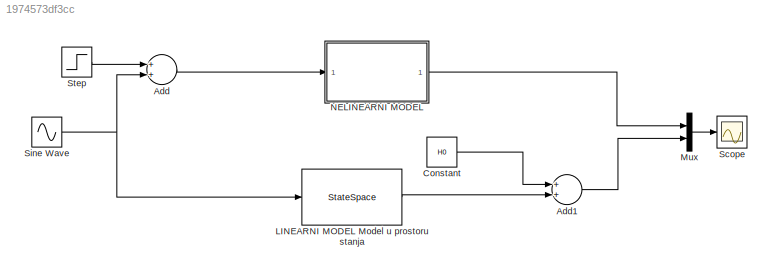
MODEL slx_1974573df3cc
KIND model
BLOCK [Sum] Add
  InputSameDT = off
  OutDataTypeStr = Inherit: Inherit via internal rule
  Ports = [2, 1]
  SaturateOnIntegerOverflow = off
BLOCK [Sum] Add1
  InputSameDT = off
  OutDataTypeStr = Inherit: Inherit via internal rule
  Ports = [2, 1]
  SaturateOnIntegerOverflow = off
BLOCK [Constant] Constant
  Value = H0
BLOCK [StateSpace] LINEARNI MODEL Model u prostoru stanja
  A = A
  B = B
  C = C
  D = [0]
BLOCK [Mux] Mux
  DisplayOption = bar
  Inputs = 2
  Ports = [2, 1]
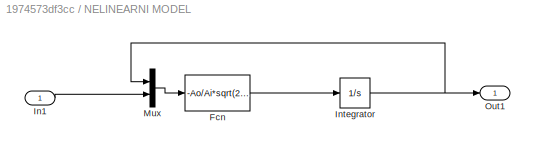
BLOCK [SubSystem] NELINEARNI MODEL
  FunctionWithSeparateData = off
  MaskHideContents = off
  MinAlgLoopOccurrences = off
  Opaque = off
  Ports = [1, 1]
  PropExecContextOutsideSubsystem = off
  RTWSystemCode = Auto
  RequestExecContextInheritance = off
BLOCK [Fcn] NELINEARNI MODEL/Fcn
  Expr = -Ao/Ai*sqrt(2*k*g*u(1))+1/Ai*u(2)
BLOCK [Inport] NELINEARNI MODEL/In1
  IconDisplay = Port number
BLOCK [Integrator] NELINEARNI MODEL/Integrator
  Ports = [1, 1]
BLOCK [Mux] NELINEARNI MODEL/Mux
  DisplayOption = bar
  Inputs = 2
  Ports = [2, 1]
BLOCK [Outport] NELINEARNI MODEL/Out1
  IconDisplay = Port number
BLOCK [Scope] Scope
  DataFormat = StructureWithTime
  Floating = off
  NumInputPorts = 1
  Ports = [1]
  SampleTime = 0
  ShowLegends = off
BLOCK [Sin] Sine Wave
  Amplitude = 0.1*Q0
  Frequency = 0.001*2*pi
  Ports = [0, 1]
  SampleTime = 0
BLOCK [Step] Step
  After = Q0
  SampleTime = 0
  Time = 0
LINE Add1:1 -> Mux:2
LINE Add:1 -> NELINEARNI MODEL:1
LINE Constant:1 -> Add1:1
LINE LINEARNI MODEL Model u prostoru stanja:1 -> Add1:2
LINE Mux:1 -> Scope:1
LINE NELINEARNI MODEL/Fcn:1 -> NELINEARNI MODEL/Integrator:1
LINE NELINEARNI MODEL/In1:1 -> NELINEARNI MODEL/Mux:2
NET NELINEARNI MODEL/Integrator:1 -> NELINEARNI MODEL/Mux:1, NELINEARNI MODEL/Out1:1
LINE NELINEARNI MODEL/Mux:1 -> NELINEARNI MODEL/Fcn:1
LINE NELINEARNI MODEL:1 -> Mux:1
NET Sine Wave:1 -> Add:2, LINEARNI MODEL Model u prostoru stanja:1
LINE Step:1 -> Add:1
note: NET lines group one-source signal fan-out (src -> all destinations, sorted); 1:1 wires keep LINE
